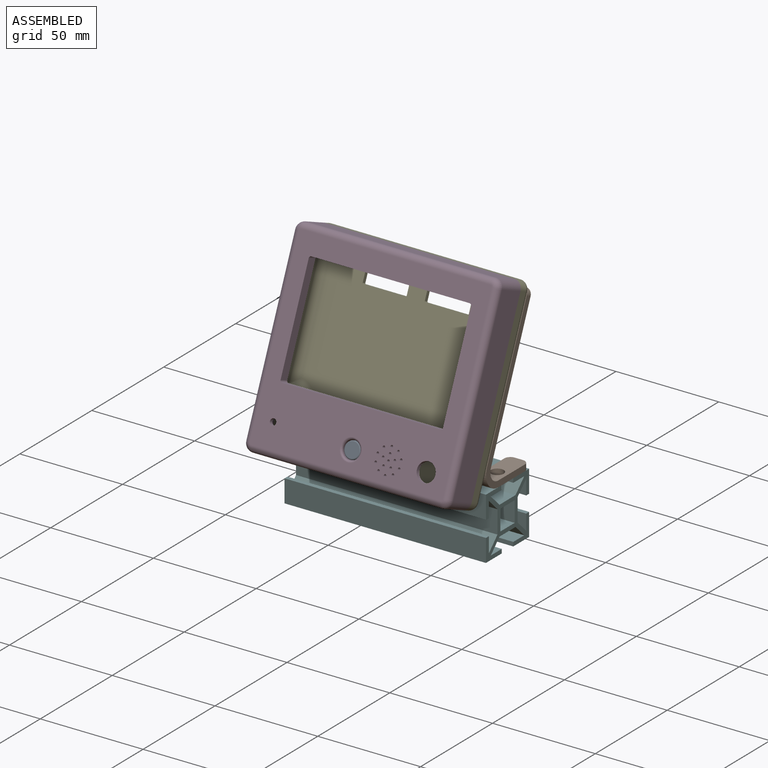
[diagram: assembled view]
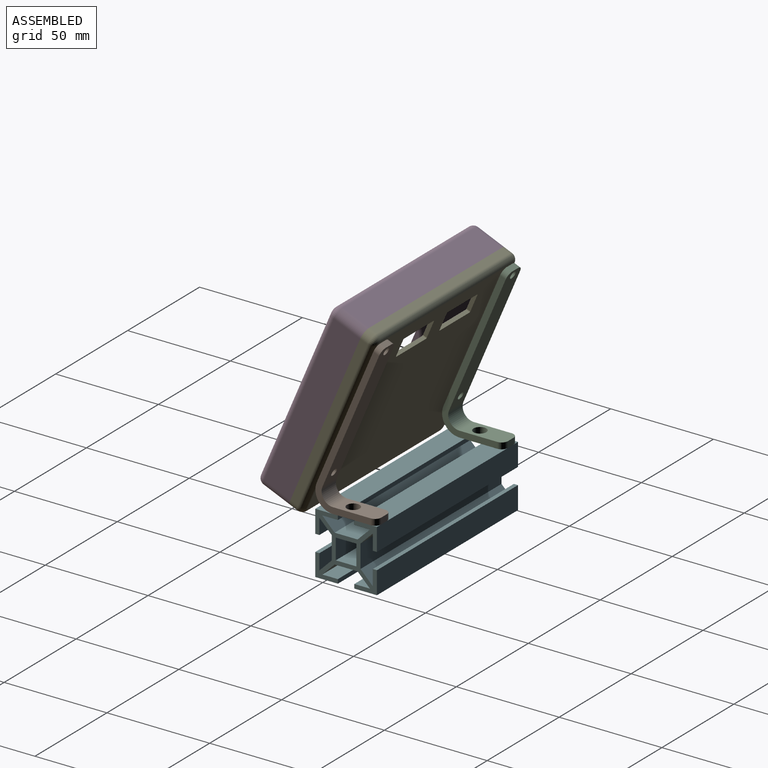
[diagram: assembled view, second angle]
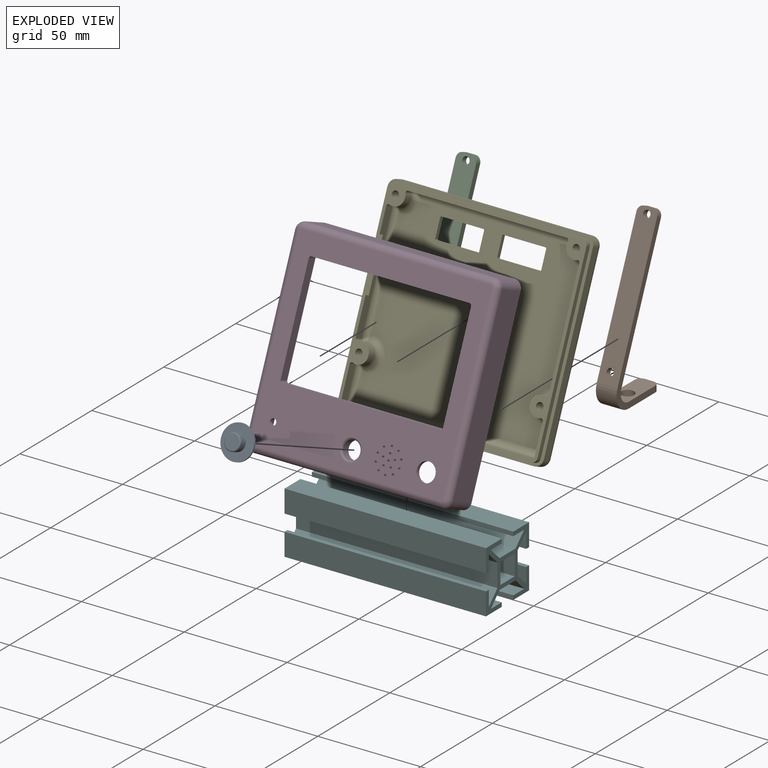
[diagram: exploded view]
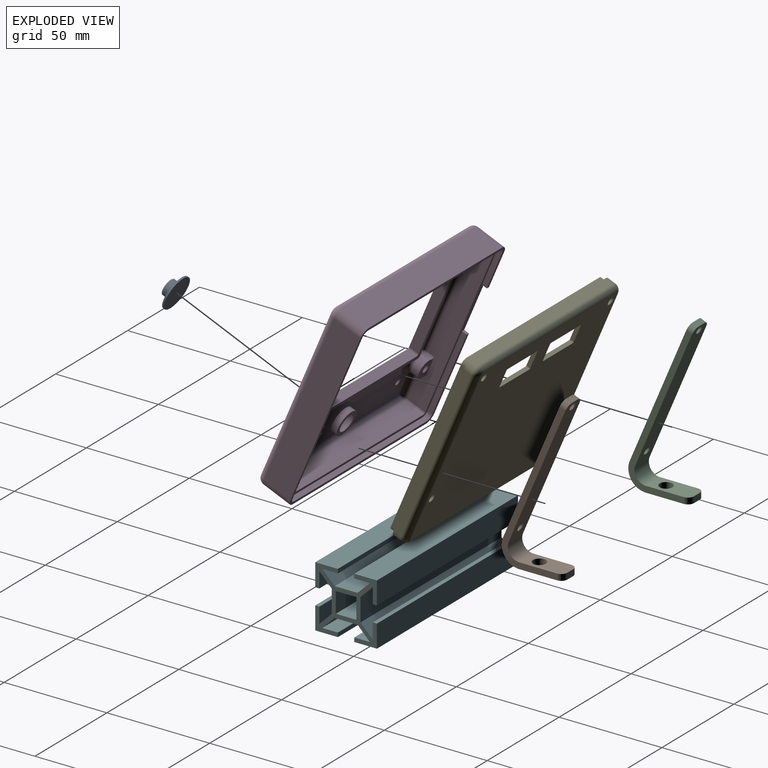
[diagram: exploded view, second angle]
ASSEMBLY  parts=6 mates=9
PART A: 6 faces, bbox 16x16x4.8 mm
  f0: cylinder r=3.95mm len=7.9mm, axis (0,0,-1), area 86.9mm2, adj f4,f5
  f1: plane 6.9x6.9mm, normal (0,0,1), area 37.4mm2, adj f5
  f2: cylinder r=8mm len=16mm, axis (0,0,1), area 40.2mm2, adj f3,f4
  f3: plane 16x16mm, normal (0,0,-1), area 201.1mm2, adj f2
  f4: plane 16x16mm, normal (0,0,1), area 152mm2, adj f0,f2
  f5: torus R=3.45mm, axis (0,0,-1), area 18.6mm2, adj f0,f1
PART B: 17 faces, bbox 32.1x79.4x10 mm
  f0: plane 21.42x10mm, normal (0,-1,0), area 179.7mm2, adj f1,f7,f8,f9,f12,f14,f16
  f1: plane 4x3mm, normal (1,0,0), area 12mm2, adj f0,f2,f14,f16
  f2: plane 21.42x10mm, normal (0,1,0), area 179.7mm2, adj f1,f3,f8,f9,f12,f14,f16
  f3: cylinder r=5.5mm len=10mm, axis (0,0,-1), area 108.5mm2, adj f2,f4,f8,f9
  f4: plane 67.59x28.69mm, normal (0.92,-0.39,0), area 711.1mm2, adj f3,f5,f8,f9,f10,f11,f13,f15
  f5: plane 4x2.76mm, normal (0.39,0.92,0), area 12mm2, adj f4,f6,f13,f15
  f6: plane 67.59x28.69mm, normal (-0.92,0.39,0), area 711.1mm2, adj f5,f7,f8,f9,f10,f11,f13,f15
  f7: cylinder r=8.5mm len=11.82mm, axis (0,0,-1), area 167.6mm2, adj f0,f6,f8,f9
  f8: plane 76.65x30.95mm, normal (0,0,1), area 308mm2, adj f0,f2,f3,f4,f6,f7,f15,f16
  f9: plane 76.65x30.95mm, normal (0,0,-1), area 308mm2, adj f0,f2,f3,f4,f6,f7,f13,f14
  f10: cylinder r=1.75mm len=4.39mm, axis (-0.92,0.39,0), area 33mm2, adj f4,f6
  f11: cylinder r=1.75mm len=4.39mm, axis (-0.92,0.39,0), area 33mm2, adj f4,f6
  f12: cylinder r=3.12mm len=6.25mm, axis (0,1,0), area 58.9mm2, adj f0,f2
  f13: cylinder r=3mm len=3.93mm, axis (-0.92,0.39,0), area 14.1mm2, adj f4,f5,f6,f9
  f14: cylinder r=3mm len=3mm, axis (0,1,0), area 14.1mm2, adj f0,f1,f2,f9
  f15: cylinder r=3mm len=3.93mm, axis (0.92,-0.39,0), area 14.1mm2, adj f4,f5,f6,f8
  f16: cylinder r=3mm len=3mm, axis (0,-1,0), area 14.1mm2, adj f0,f1,f2,f8
PART C: same geometry as B
PART D: 135 faces, bbox 100.2x95.2x17.2 mm
  f0: plane 88x22.5mm, normal (0,0,-1), area 1610.6mm2, adj f26,f27,f28,f29,f30,f31,f32,f33
  f1: plane 50.33x2.5mm, normal (0,0,-1), area 124.4mm2, adj f51,f93,f97,f101
  f2: plane 50.33x2.5mm, normal (0,0,-1), area 124.4mm2, adj f49,f90,f94,f98
  f3: plane 87x9.5mm, normal (1,0,0), area 762.9mm2, adj f9,f14,f61,f69,f71,f74,f75,f76
  f4: plane 87x9.5mm, normal (-1,0,0), area 762.9mm2, adj f11,f12,f61,f65,f67,f72,f73,f79
  f5: plane 75.38x4.5mm, normal (0,0,-1), area 330.4mm2, adj f50,f89,f90,f93
  f6: plane 100x95mm, normal (0,0,-1), area 530.1mm2, adj f7,f8,f18,f19,f20,f21,f22,f23
  f7: plane 87x14mm, normal (-1,0,0), area 1155.5mm2, adj f6,f21,f22,f61,f62,f63,f113
  f8: plane 43x2.5mm, normal (1,0,0), area 107.5mm2, adj f6,f55,f61,f62
  f9: cylinder r=1mm len=6mm, axis (0,0,1), area 9.4mm2, adj f3,f10,f61,f69
  f10: plane 92x9.5mm, normal (0,-1,0), area 822.3mm2, adj f9,f11,f61,f67,f69,f77,f78,f89
  f11: cylinder r=1mm len=6mm, axis (0,0,1), area 9.4mm2, adj f4,f10,f61,f67
  f12: cylinder r=1mm len=9.5mm, axis (0,0,1), area 14.9mm2, adj f4,f13,f61,f104
  f13: plane 92x9.5mm, normal (0,1,0), area 874mm2, adj f12,f14,f61,f106,f108,f109
  f14: cylinder r=1mm len=9.5mm, axis (0,0,1), area 14.9mm2, adj f3,f13,f61,f107
  f15: plane 77x5mm, normal (0,1,0), area 385mm2, adj f45,f52,f84,f87
  f16: plane 50x5mm, normal (1,0,0), area 250mm2, adj f45,f52,f84,f85
  f17: plane 77x5mm, normal (0,-1,0), area 385mm2, adj f45,f52,f85,f86
  f18: plane 87x14mm, normal (1,0,0), area 1218mm2, adj f6,f19,f25,f114
  f19: cylinder r=4mm len=14mm, axis (0,0,-1), area 88mm2, adj f6,f18,f20,f116
  f20: plane 92x14mm, normal (0,1,0), area 1288mm2, adj f6,f19,f21,f117
  f21: cylinder r=4mm len=14mm, axis (0,0,-1), area 88mm2, adj f6,f7,f20,f115
  f22: cylinder r=4mm len=14mm, axis (0,0,-1), area 88mm2, adj f6,f7,f23,f111
  f23: plane 92x14mm, normal (0,-1,0), area 1288mm2, adj f6,f22,f25,f110
  f24: cylinder r=4.2mm len=8.4mm, axis (0,0,-1), area 105.6mm2, adj f47,f118
  f25: cylinder r=4mm len=14mm, axis (0,0,-1), area 88mm2, adj f6,f18,f23,f112
  f26: cylinder r=4.5mm len=9mm, axis (0,0,-1), area 56.5mm2, adj f0,f45
  f27: cylinder r=1.5mm len=3mm, axis (0,0,-1), area 18.8mm2, adj f0,f45
  f28: cylinder r=0.6mm len=2mm, axis (0,0,-1), area 7.5mm2, adj f0,f45
  f29: cylinder r=0.6mm len=2mm, axis (0,0,-1), area 7.5mm2, adj f0,f45
  f30: cylinder r=0.6mm len=2mm, axis (0,0,-1), area 7.5mm2, adj f0,f45
  f31: cylinder r=0.6mm len=2mm, axis (0,0,-1), area 7.5mm2, adj f0,f45
  f32: cylinder r=0.6mm len=2mm, axis (0,0,-1), area 7.5mm2, adj f0,f45
  f33: cylinder r=0.6mm len=2mm, axis (0,0,-1), area 7.5mm2, adj f0,f45
  f34: cylinder r=0.6mm len=2mm, axis (0,0,-1), area 7.5mm2, adj f0,f45,f108
  f35: cylinder r=0.6mm len=2mm, axis (0,0,-1), area 7.5mm2, adj f0,f45
  f36: cylinder r=0.6mm len=2mm, axis (0,0,-1), area 7.5mm2, adj f0,f45
  f37: cylinder r=0.6mm len=2mm, axis (0,0,-1), area 7.5mm2, adj f0,f45
  f38: cylinder r=0.6mm len=2mm, axis (0,0,-1), area 7.5mm2, adj f0,f45
  f39: cylinder r=0.6mm len=2mm, axis (0,0,-1), area 7.5mm2, adj f0,f45
  f40: cylinder r=0.6mm len=2mm, axis (0,0,-1), area 7.5mm2, adj f0,f45
  f41: cylinder r=0.6mm len=2mm, axis (0,0,-1), area 7.5mm2, adj f0,f45
  f42: cylinder r=0.6mm len=2mm, axis (0,0,-1), area 7.5mm2, adj f0,f45
  f43: cylinder r=0.6mm len=2mm, axis (0,0,-1), area 7.5mm2, adj f0,f45
  f44: plane 50x5mm, normal (-1,0,0), area 250mm2, adj f45,f52,f86,f87
  f45: plane 94x89mm, normal (0,0,1), area 4084.3mm2, adj f15,f16,f17,f26,f27,f28,f29,f30
  f46: cylinder r=6.2mm len=12.4mm, axis (0,0,1), area 116.9mm2, adj f0,f47
  f47: plane 12.4x12.4mm, normal (0,0,-1), area 65.3mm2, adj f24,f46
  f48: plane 81.24x3.24mm, normal (0,-1,0), area 241.5mm2, adj f0,f52,f80,f83,f98,f101
  f49: plane 54.06x3.06mm, normal (1,0,0), area 161.4mm2, adj f2,f52,f82,f83,f90,f98
  f50: plane 81.24x3.24mm, normal (0,1,0), area 241.5mm2, adj f5,f52,f81,f82,f90,f93
  f51: plane 54.06x3.06mm, normal (-1,0,0), area 161.4mm2, adj f1,f52,f80,f81,f93,f101
  f52: plane 83x56mm, normal (0,0,-1), area 540mm2, adj f15,f16,f17,f44,f48,f49,f50,f51
  f53: cylinder r=2.5mm len=2.5mm, axis (0,0,-1), area 9.8mm2, adj f6,f54,f60,f61
  f54: plane 92x2.5mm, normal (0,1,0), area 230mm2, adj f6,f53,f55,f61
  f55: cylinder r=2.5mm len=2.5mm, axis (0,0,-1), area 9.8mm2, adj f6,f8,f54,f61
  f56: plane 19x2.5mm, normal (1,0,0), area 47.5mm2, adj f6,f57,f61,f63
  f57: cylinder r=2.5mm len=2.5mm, axis (0,0,-1), area 9.8mm2, adj f6,f56,f58,f61
  f58: plane 92x2.5mm, normal (0,-1,0), area 230mm2, adj f6,f57,f59,f61
  f59: cylinder r=2.5mm len=2.5mm, axis (0,0,-1), area 9.8mm2, adj f6,f58,f60,f61
  f60: plane 87x2.5mm, normal (-1,0,0), area 217.5mm2, adj f6,f53,f59,f61
  f61: plane 98.5x92mm, normal (0,0,-1), area 591mm2, adj f3,f4,f7,f8,f9,f10,f11,f12
  f62: plane 2.5x1.5mm, normal (0,1,0), area 3.8mm2, adj f6,f7,f8,f61
  f63: plane 2.5x1.5mm, normal (0,-1,0), area 3.8mm2, adj f6,f7,f56,f61
  f64: cylinder r=4.75mm len=9.5mm, axis (0,0,1), area 64mm2, adj f65,f72,f73,f98
  f65: plane 10.78x7.75mm, normal (0,0,-1), area 52.3mm2, adj f4,f64,f72,f73,f125
  f66: cylinder r=4.75mm len=6.4mm, axis (0,0,1), area 37.9mm2, adj f67,f78,f79,f90
  f67: plane 8.39x8.39mm, normal (0,0,-1), area 43.4mm2, adj f4,f10,f11,f66,f78,f79,f123
  f68: cylinder r=4.75mm len=6.4mm, axis (0,0,1), area 37.9mm2, adj f69,f76,f77,f93
  f69: plane 8.39x8.39mm, normal (0,0,-1), area 43.4mm2, adj f3,f9,f10,f68,f76,f77,f121
  f70: cylinder r=4.75mm len=9.5mm, axis (0,0,1), area 64mm2, adj f71,f74,f75,f101
  f71: plane 10.78x7.75mm, normal (0,0,-1), area 52.3mm2, adj f3,f70,f74,f75,f119
  f72: cylinder r=1mm len=3.5mm, axis (0,0,1), area 6.7mm2, adj f4,f64,f65,f96
  f73: cylinder r=1mm len=3.5mm, axis (0,0,1), area 6.7mm2, adj f4,f64,f65,f100
  f74: cylinder r=1mm len=3.5mm, axis (0,0,1), area 6.7mm2, adj f3,f70,f71,f103
  f75: cylinder r=1mm len=3.5mm, axis (0,0,1), area 6.7mm2, adj f3,f70,f71,f99
  f76: cylinder r=1mm len=3.5mm, axis (0,0,1), area 6.7mm2, adj f3,f68,f69,f95
  f77: cylinder r=1mm len=3.5mm, axis (0,0,1), area 6.7mm2, adj f10,f68,f69,f91
  f78: cylinder r=1mm len=3.5mm, axis (0,0,1), area 6.7mm2, adj f10,f66,f67,f88
  f79: cylinder r=1mm len=3.5mm, axis (0,0,1), area 6.7mm2, adj f4,f66,f67,f92
  f80: cylinder r=1mm len=2.47mm, axis (0,0,1), area 3.4mm2, adj f48,f51,f52,f101
  f81: cylinder r=1mm len=2.47mm, axis (0,0,-1), area 3.4mm2, adj f50,f51,f52,f93
  f82: cylinder r=1mm len=2.47mm, axis (0,0,1), area 3.4mm2, adj f49,f50,f52,f90
  f83: cylinder r=1mm len=2.47mm, axis (0,0,-1), area 3.4mm2, adj f48,f49,f52,f98
  f84: cylinder r=1mm len=5mm, axis (0,0,-1), area 7.9mm2, adj f15,f16,f45,f52
  f85: cylinder r=1mm len=5mm, axis (0,0,1), area 7.9mm2, adj f16,f17,f45,f52
  f86: cylinder r=1mm len=5mm, axis (0,0,-1), area 7.9mm2, adj f17,f44,f45,f52
  f87: cylinder r=1mm len=5mm, axis (0,0,1), area 7.9mm2, adj f15,f44,f45,f52
  f88: bspline ~3.8x3.67mm, area 6mm2, adj f78,f89,f90
  f89: cylinder r=3mm len=77.22mm, axis (1,0,0), area 355.2mm2, adj f5,f10,f88,f91
  f90: torus R=7.75mm, axis (0,0,1), area 47.2mm2, adj f2,f5,f49,f50,f66,f82,f88,f92
  f91: bspline ~3.8x3.67mm, area 6mm2, adj f77,f89,f93
  f92: bspline ~3.8x3.67mm, area 6mm2, adj f79,f90,f94
  f93: torus R=7.75mm, axis (0,0,1), area 47.2mm2, adj f1,f5,f50,f51,f68,f81,f91,f95
  f94: cylinder r=3mm len=54.22mm, axis (0,-1,0), area 246.9mm2, adj f2,f4,f92,f96
  f95: bspline ~3.8x3.67mm, area 6mm2, adj f76,f93,f97
  f96: bspline ~3.8x3.67mm, area 6mm2, adj f72,f94,f98
  f97: cylinder r=3mm len=54.22mm, axis (0,1,0), area 246.9mm2, adj f1,f3,f95,f99
  f98: torus R=7.75mm, axis (0,0,1), area 90.4mm2, adj f0,f2,f48,f49,f64,f83,f96,f100
  f99: bspline ~3.8x3.67mm, area 6mm2, adj f75,f97,f101
  f100: bspline ~3.8x3.67mm, area 6mm2, adj f73,f98,f102
  f101: torus R=7.75mm, axis (0,0,1), area 90.4mm2, adj f0,f1,f48,f51,f70,f80,f99,f103
  f102: cylinder r=3mm len=14.61mm, axis (0,-1,0), area 61.1mm2, adj f0,f4,f100,f104
  f103: bspline ~3.8x3.67mm, area 6mm2, adj f74,f101,f105
  f104: bspline ~3.52x3mm, area 5mm2, adj f12,f102,f106
  f105: cylinder r=3mm len=14.61mm, axis (0,1,0), area 61.1mm2, adj f0,f3,f103,f107
  f106: cylinder r=3mm len=27.52mm, axis (-1,0,0), area 126.3mm2, adj f0,f13,f104,f108
  f107: bspline ~3.52x3mm, area 5mm2, adj f14,f105,f109
  f108: bspline ~3.07x3.07mm, area 3.1mm2, adj f13,f34,f106,f109
  f109: cylinder r=3mm len=63.82mm, axis (-1,0,0), area 297.3mm2, adj f0,f13,f107,f108
  f110: cylinder r=3mm len=92mm, axis (-1,0,0), area 433.5mm2, adj f23,f45,f111,f112
  f111: torus R=1mm, axis (0,0,1), area 21.5mm2, adj f22,f45,f110,f113
  f112: torus R=1mm, axis (0,0,1), area 21.5mm2, adj f25,f45,f110,f114
  f113: cylinder r=3mm len=87mm, axis (0,1,0), area 410mm2, adj f7,f45,f111,f115
  f114: cylinder r=3mm len=87mm, axis (0,-1,0), area 410mm2, adj f18,f45,f112,f116
  f115: torus R=1mm, axis (0,0,1), area 21.5mm2, adj f21,f45,f113,f117
  f116: torus R=1mm, axis (0,0,1), area 21.5mm2, adj f19,f45,f114,f117
  f117: cylinder r=3mm len=92mm, axis (1,0,0), area 433.5mm2, adj f20,f45,f115,f116
  f118: torus R=5.2mm, axis (0,0,1), area 45mm2, adj f24,f45
  f119: cylinder r=1.85mm len=5mm, axis (0,0,-1), area 58.1mm2, adj f71,f120
  f120: plane 3.7x3.7mm, normal (0,0,-1), area 1.1mm2, adj f119,f134
  f121: cylinder r=1.85mm len=5mm, axis (0,0,-1), area 58.1mm2, adj f69,f122
  f122: plane 3.7x3.7mm, normal (0,0,-1), area 1.1mm2, adj f121,f128
  f123: cylinder r=1.85mm len=5mm, axis (0,0,-1), area 58.1mm2, adj f67,f124
  f124: plane 3.7x3.7mm, normal (0,0,-1), area 1.1mm2, adj f123,f130
  f125: cylinder r=1.85mm len=5mm, axis (0,0,-1), area 58.1mm2, adj f65,f126
  f126: plane 3.7x3.7mm, normal (0,0,-1), area 1.1mm2, adj f125,f132
  f127: plane 3.5x3.5mm, normal (0,0,-1), area 9.6mm2, adj f128
  f128: cylinder r=1.75mm len=3.5mm, axis (0,0,-1), area 16.5mm2, adj f122,f127
  f129: plane 3.5x3.5mm, normal (0,0,-1), area 9.6mm2, adj f130
  f130: cylinder r=1.75mm len=3.5mm, axis (0,0,-1), area 16.5mm2, adj f124,f129
  f131: plane 3.5x3.5mm, normal (0,0,-1), area 9.6mm2, adj f132
  f132: cylinder r=1.75mm len=3.5mm, axis (0,0,-1), area 16.5mm2, adj f126,f131
  f133: plane 3.5x3.5mm, normal (0,0,-1), area 9.6mm2, adj f134
  f134: cylinder r=1.75mm len=3.5mm, axis (0,0,-1), area 16.5mm2, adj f120,f133
PART E: 91 faces, bbox 100x95x9.5 mm
  f0: plane 54.22x4.5mm, normal (1,0,0), area 181.5mm2, adj f16,f27,f46,f52,f53,f54,f78
  f1: plane 43x2.5mm, normal (-1,0,0), area 107.5mm2, adj f11,f16,f27,f53
  f2: plane 14.61x4.5mm, normal (1,0,0), area 65.7mm2, adj f7,f16,f45,f79
  f3: plane 14.61x4.5mm, normal (-1,0,0), area 65.7mm2, adj f9,f16,f47,f71
  f4: plane 54.22x4.5mm, normal (-1,0,0), area 244mm2, adj f16,f48,f50,f63
  f5: plane 88x83mm, normal (0,0,1), area 6602mm2, adj f28,f29,f30,f31,f32,f33,f37,f38
  f6: plane 77.22x4.5mm, normal (0,-1,0), area 347.5mm2, adj f16,f49,f51,f70
  f7: cylinder r=1mm len=4.5mm, axis (0,0,1), area 7.1mm2, adj f2,f8,f16,f77
  f8: plane 92x4.5mm, normal (0,1,0), area 414mm2, adj f7,f9,f16,f75
  f9: cylinder r=1mm len=4.5mm, axis (0,0,1), area 7.1mm2, adj f3,f8,f16,f73
  f10: plane 92x2.5mm, normal (0,-1,0), area 230mm2, adj f11,f15,f16,f27
  f11: cylinder r=2.5mm len=2.5mm, axis (0,0,1), area 9.8mm2, adj f1,f10,f16,f27
  f12: plane 19x2.5mm, normal (-1,0,0), area 47.5mm2, adj f13,f16,f27,f54
  f13: cylinder r=2.5mm len=2.5mm, axis (0,0,1), area 9.8mm2, adj f12,f14,f16,f27
  f14: plane 92x2.5mm, normal (0,1,0), area 230mm2, adj f13,f16,f17,f27
  f15: cylinder r=2.5mm len=2.5mm, axis (0,0,1), area 9.8mm2, adj f10,f16,f18,f27
  f16: plane 97x92mm, normal (0,0,1), area 712mm2, adj f0,f1,f2,f3,f4,f6,f7,f8
  f17: cylinder r=2.5mm len=2.5mm, axis (0,0,1), area 9.8mm2, adj f14,f16,f18,f27
  f18: plane 87x2.5mm, normal (1,0,0), area 217.5mm2, adj f15,f16,f17,f27
  f19: plane 87x4mm, normal (1,0,0), area 348mm2, adj f20,f26,f27,f83
  f20: cylinder r=4mm len=4mm, axis (0,0,1), area 25.1mm2, adj f19,f21,f27,f84
  f21: plane 92x4mm, normal (0,-1,0), area 368mm2, adj f20,f22,f27,f86
  f22: cylinder r=4mm len=4mm, axis (0,0,1), area 25.1mm2, adj f21,f23,f27,f88
  f23: plane 87x4mm, normal (-1,0,0), area 348mm2, adj f22,f24,f27,f90
  f24: cylinder r=4mm len=4mm, axis (0,0,1), area 25.1mm2, adj f23,f25,f27,f89
  f25: plane 92x4mm, normal (0,1,0), area 368mm2, adj f24,f26,f27,f87
  f26: cylinder r=4mm len=4mm, axis (0,0,1), area 25.1mm2, adj f19,f25,f27,f85
  f27: plane 100x95mm, normal (0,0,1), area 605.1mm2, adj f0,f1,f10,f11,f12,f13,f14,f15
  f28: plane 8.8x2mm, normal (1,0,0), area 17.6mm2, adj f5,f40,f59,f62
  f29: plane 20.4x2mm, normal (0,1,0), area 40.8mm2, adj f5,f40,f59,f60
  f30: plane 8.8x2mm, normal (-1,0,0), area 17.6mm2, adj f5,f40,f60,f61
  f31: plane 8.8x2mm, normal (1,0,0), area 17.6mm2, adj f5,f40,f55,f58
  f32: plane 20.4x2mm, normal (0,1,0), area 40.8mm2, adj f5,f40,f55,f56
  f33: plane 8.8x2mm, normal (-1,0,0), area 17.6mm2, adj f5,f40,f56,f57
  f34: cylinder r=1.75mm len=9.5mm, axis (0,0,1), area 104.5mm2, adj f16,f40
  f35: cylinder r=1.75mm len=9.5mm, axis (0,0,1), area 104.5mm2, adj f16,f40
  f36: cylinder r=1.75mm len=9.5mm, axis (0,0,1), area 104.5mm2, adj f16,f40
  f37: plane 20.4x2mm, normal (0,-1,0), area 40.8mm2, adj f5,f40,f61,f62
  f38: plane 20.4x2mm, normal (0,-1,0), area 40.8mm2, adj f5,f40,f57,f58
  f39: cylinder r=1.75mm len=9.5mm, axis (0,0,1), area 104.5mm2, adj f16,f40
  f40: plane 94x89mm, normal (0,0,-1), area 7907.6mm2, adj f28,f29,f30,f31,f32,f33,f34,f35
  f41: cylinder r=4.75mm len=6.4mm, axis (0,0,-1), area 48.8mm2, adj f16,f51,f52,f74
  f42: cylinder r=4.75mm len=6.4mm, axis (0,0,-1), area 48.8mm2, adj f16,f49,f50,f66
  f43: cylinder r=4.75mm len=9.5mm, axis (0,0,-1), area 82.3mm2, adj f16,f47,f48,f67
  f44: cylinder r=4.75mm len=9.5mm, axis (0,0,-1), area 82.3mm2, adj f16,f45,f46,f82
  f45: cylinder r=1mm len=4.5mm, axis (0,0,-1), area 8.7mm2, adj f2,f16,f44,f81
  f46: cylinder r=1mm len=4.5mm, axis (0,0,-1), area 8.7mm2, adj f0,f16,f44,f80
  f47: cylinder r=1mm len=4.5mm, axis (0,0,-1), area 8.7mm2, adj f3,f16,f43,f69
  f48: cylinder r=1mm len=4.5mm, axis (0,0,-1), area 8.7mm2, adj f4,f16,f43,f65
  f49: cylinder r=1mm len=4.5mm, axis (0,0,-1), area 8.7mm2, adj f6,f16,f42,f68
  f50: cylinder r=1mm len=4.5mm, axis (0,0,-1), area 8.7mm2, adj f4,f16,f42,f64
  f51: cylinder r=1mm len=4.5mm, axis (0,0,-1), area 8.7mm2, adj f6,f16,f41,f72
  f52: cylinder r=1mm len=4.5mm, axis (0,0,-1), area 8.7mm2, adj f0,f16,f41,f76
  f53: plane 2.5x1.5mm, normal (0,1,0), area 3.8mm2, adj f0,f1,f16,f27
  f54: plane 2.5x1.5mm, normal (0,-1,0), area 3.8mm2, adj f0,f12,f16,f27
  f55: cylinder r=0.5mm len=2mm, axis (0,0,1), area 1.6mm2, adj f5,f31,f32,f40
  f56: cylinder r=0.5mm len=2mm, axis (0,0,-1), area 1.6mm2, adj f5,f32,f33,f40
  f57: cylinder r=0.5mm len=2mm, axis (0,0,1), area 1.6mm2, adj f5,f33,f38,f40
  f58: cylinder r=0.5mm len=2mm, axis (0,0,-1), area 1.6mm2, adj f5,f31,f38,f40
  f59: cylinder r=0.5mm len=2mm, axis (0,0,1), area 1.6mm2, adj f5,f28,f29,f40
  f60: cylinder r=0.5mm len=2mm, axis (0,0,-1), area 1.6mm2, adj f5,f29,f30,f40
  f61: cylinder r=0.5mm len=2mm, axis (0,0,1), area 1.6mm2, adj f5,f30,f37,f40
  f62: cylinder r=0.5mm len=2mm, axis (0,0,-1), area 1.6mm2, adj f5,f28,f37,f40
  f63: cylinder r=3mm len=54.22mm, axis (0,1,0), area 246.9mm2, adj f4,f5,f64,f65
  f64: bspline ~3.8x3.67mm, area 6mm2, adj f50,f63,f66
  f65: bspline ~3.8x3.67mm, area 6mm2, adj f48,f63,f67
  f66: torus R=7.75mm, axis (0,0,-1), area 53.8mm2, adj f5,f42,f64,f68
  f67: torus R=7.75mm, axis (0,0,-1), area 97mm2, adj f5,f43,f65,f69
  f68: bspline ~3.8x3.67mm, area 6mm2, adj f49,f66,f70
  f69: bspline ~3.8x3.67mm, area 6mm2, adj f47,f67,f71
  f70: cylinder r=3mm len=77.22mm, axis (-1,0,0), area 355.2mm2, adj f5,f6,f68,f72
  f71: cylinder r=3mm len=14.61mm, axis (0,1,0), area 61.1mm2, adj f3,f5,f69,f73
  f72: bspline ~3.8x3.67mm, area 6mm2, adj f51,f70,f74
  f73: bspline ~3.52x3mm, area 5mm2, adj f9,f71,f75
  f74: torus R=7.75mm, axis (0,0,-1), area 53.8mm2, adj f5,f41,f72,f76
  f75: cylinder r=3mm len=92mm, axis (1,0,0), area 426.7mm2, adj f5,f8,f73,f77
  f76: bspline ~3.8x3.67mm, area 6mm2, adj f52,f74,f78
  f77: bspline ~3.52x3mm, area 5mm2, adj f7,f75,f79
  f78: cylinder r=3mm len=54.22mm, axis (0,-1,0), area 246.9mm2, adj f0,f5,f76,f80
  f79: cylinder r=3mm len=14.61mm, axis (0,-1,0), area 61.1mm2, adj f2,f5,f77,f81
  f80: bspline ~3.8x3.67mm, area 6mm2, adj f46,f78,f82
  f81: bspline ~3.8x3.67mm, area 6mm2, adj f45,f79,f82
  f82: torus R=7.75mm, axis (0,0,-1), area 97mm2, adj f5,f44,f80,f81
  f83: cylinder r=3mm len=87mm, axis (0,1,0), area 410mm2, adj f19,f40,f84,f85
  f84: torus R=1mm, axis (0,0,-1), area 21.5mm2, adj f20,f40,f83,f86
  f85: torus R=1mm, axis (0,0,-1), area 21.5mm2, adj f26,f40,f83,f87
  f86: cylinder r=3mm len=92mm, axis (1,0,0), area 433.5mm2, adj f21,f40,f84,f88
  f87: cylinder r=3mm len=92mm, axis (-1,0,0), area 433.5mm2, adj f25,f40,f85,f89
  f88: torus R=1mm, axis (0,0,-1), area 21.5mm2, adj f22,f40,f86,f90
  f89: torus R=1mm, axis (0,0,-1), area 21.5mm2, adj f24,f40,f87,f90
  f90: cylinder r=3mm len=87mm, axis (0,-1,0), area 410mm2, adj f23,f40,f88,f89
PART F: 42 faces, bbox 30x30x98 mm
  f0: plane 98x10mm, normal (-1,0,0), area 980mm2, adj f6,f7,f8,f28
  f1: plane 98x11.17mm, normal (1,0,0), area 1094.8mm2, adj f2,f6,f7,f24
  f2: plane 98x6mm, normal (0.71,-0.71,0), area 831.6mm2, adj f1,f3,f6,f7
  f3: plane 98x7.59mm, normal (-1,0,0), area 743.4mm2, adj f2,f4,f6,f7
  f4: plane 98x2mm, normal (0,-1,0), area 196mm2, adj f3,f5,f6,f7
  f5: plane 98x11mm, normal (1,0,0), area 1078mm2, adj f4,f6,f7,f13
  f6: plane 30x30mm, normal (0,0,1), area 323.9mm2, adj f0,f1,f2,f3,f4,f5,f8,f9
  f7: plane 30x30mm, normal (0,0,-1), area 323.9mm2, adj f0,f1,f2,f3,f4,f5,f8,f9
  f8: plane 98x10mm, normal (0,-1,0), area 980mm2, adj f0,f6,f7,f14
  f9: plane 98x11.17mm, normal (0,1,0), area 1094.8mm2, adj f6,f7,f10,f20
  f10: plane 98x6mm, normal (-0.71,0.71,0), area 831.6mm2, adj f6,f7,f9,f11
  f11: plane 98x7.59mm, normal (0,-1,0), area 743.4mm2, adj f6,f7,f10,f12
  f12: plane 98x2mm, normal (-1,0,0), area 196mm2, adj f6,f7,f11,f13
  f13: plane 98x11mm, normal (0,1,0), area 1078mm2, adj f5,f6,f7,f12
  f14: plane 98x10mm, normal (1,0,0), area 980mm2, adj f6,f7,f8,f28
  f15: plane 98x11.17mm, normal (-1,0,0), area 1094.8mm2, adj f6,f7,f16,f34
  f16: plane 98x6mm, normal (-0.71,-0.71,0), area 831.6mm2, adj f6,f7,f15,f17
  f17: plane 98x7.59mm, normal (1,0,0), area 743.4mm2, adj f6,f7,f16,f18
  f18: plane 98x2mm, normal (0,-1,0), area 196mm2, adj f6,f7,f17,f19
  f19: plane 98x11mm, normal (-1,0,0), area 1078mm2, adj f6,f7,f18,f23
  f20: plane 98x6mm, normal (0.71,0.71,0), area 831.6mm2, adj f6,f7,f9,f21
  f21: plane 98x7.59mm, normal (0,-1,0), area 743.4mm2, adj f6,f7,f20,f22
  f22: plane 98x2mm, normal (1,0,0), area 196mm2, adj f6,f7,f21,f23
  f23: plane 98x11mm, normal (0,1,0), area 1078mm2, adj f6,f7,f19,f22
  f24: plane 98x6mm, normal (0.71,0.71,0), area 831.6mm2, adj f1,f6,f7,f25
  f25: plane 98x7.59mm, normal (-1,0,0), area 743.4mm2, adj f6,f7,f24,f26
  f26: plane 98x2mm, normal (0,1,0), area 196mm2, adj f6,f7,f25,f27
  f27: plane 98x11mm, normal (1,0,0), area 1078mm2, adj f6,f7,f26,f33
  f28: plane 98x10mm, normal (0,1,0), area 980mm2, adj f0,f6,f7,f14
  f29: plane 98x11.17mm, normal (0,-1,0), area 1094.8mm2, adj f6,f7,f30,f38
  f30: plane 98x6mm, normal (-0.71,-0.71,0), area 831.6mm2, adj f6,f7,f29,f31
  f31: plane 98x7.59mm, normal (0,1,0), area 743.4mm2, adj f6,f7,f30,f32
  f32: plane 98x2mm, normal (-1,0,0), area 196mm2, adj f6,f7,f31,f33
  f33: plane 98x11mm, normal (0,-1,0), area 1078mm2, adj f6,f7,f27,f32
  f34: plane 98x6mm, normal (-0.71,0.71,0), area 831.6mm2, adj f6,f7,f15,f35
  f35: plane 98x7.59mm, normal (1,0,0), area 743.4mm2, adj f6,f7,f34,f36
  f36: plane 98x2mm, normal (0,1,0), area 196mm2, adj f6,f7,f35,f37
  f37: plane 98x11mm, normal (-1,0,0), area 1078mm2, adj f6,f7,f36,f41
  f38: plane 98x6mm, normal (0.71,-0.71,0), area 831.6mm2, adj f6,f7,f29,f39
  f39: plane 98x7.59mm, normal (0,1,0), area 743.4mm2, adj f6,f7,f38,f40
  f40: plane 98x2mm, normal (1,0,0), area 196mm2, adj f6,f7,f39,f41
  f41: plane 98x11mm, normal (0,-1,0), area 1078mm2, adj f6,f7,f37,f40
PLACE A rot(axis=(1,0,0),67deg) t=(44.19,18.4,30.57)mm
PLACE B rot(axis=(0.58,0.58,0.58),120deg) t=(83.19,24.6,-14.97)mm
PLACE C rot(axis=(0.58,0.58,0.58),120deg) t=(-4.81,24.6,-14.97)mm fixed
PLACE D rot(axis=(1,0,0),67deg) t=(44.19,18.4,30.57)mm
PLACE E rot(axis=(1,0,0),67deg) t=(44.19,18.4,30.57)mm
PLACE F rot(axis=(0.58,0.58,0.58),120deg) t=(-4.81,41.6,-31.47)mm
MATE revolute B.f11 <-> E.f35  axis (0,-0.92,0.39) through (88.19,54.87,60.17)mm
MATE revolute E.f39 <-> C.f10  axis (0,0.92,-0.39) through (0.19,29.47,0.34)mm
MATE revolute B.f10 <-> E.f34  axis (0,-0.92,0.39) through (88.19,29.47,0.34)mm
MATE fastened A.f0 <-> D.f24  axis (0,-0.92,0.39) through (44.04,7.49,-2.82)mm
MATE planar F.f13 <-> B.f0  axis (0,0,1) through (44.19,51.1,-16.47)mm
MATE revolute E.f36 <-> C.f11  axis (0,-0.92,0.39) through (0.19,54.87,60.17)mm
MATE planar F.f6 <-> B.f8  axis (1,0,0) through (93.19,41.6,-31.47)mm
MATE planar F.f5 <-> B.f1  axis (0,1,0) through (44.19,56.6,-21.97)mm
MATE fastened E.f9 <-> D.f12  axis (0,-0.92,0.39) through (90.19,12.91,-14.36)mm
